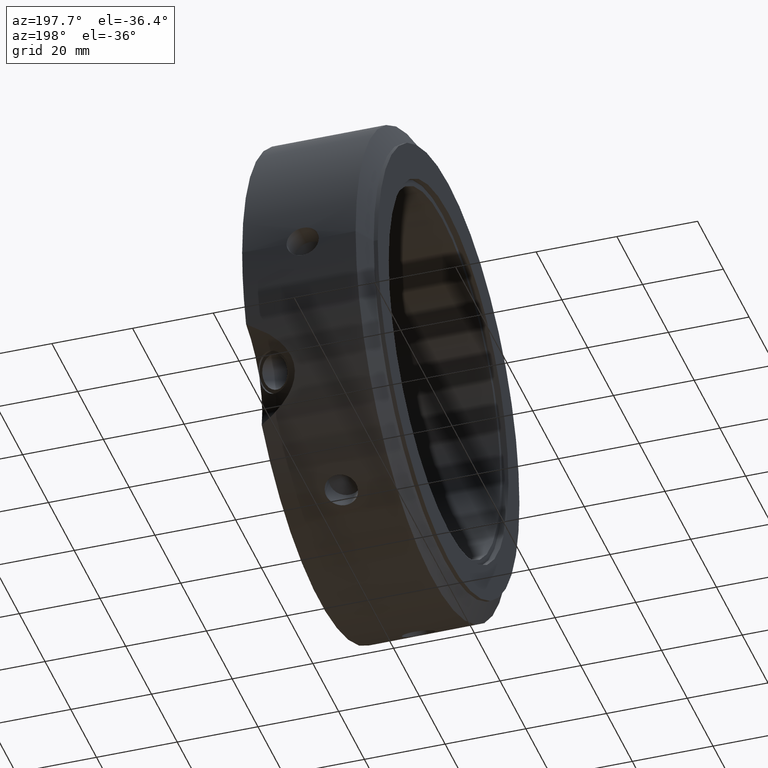
[diagram: clean part render]
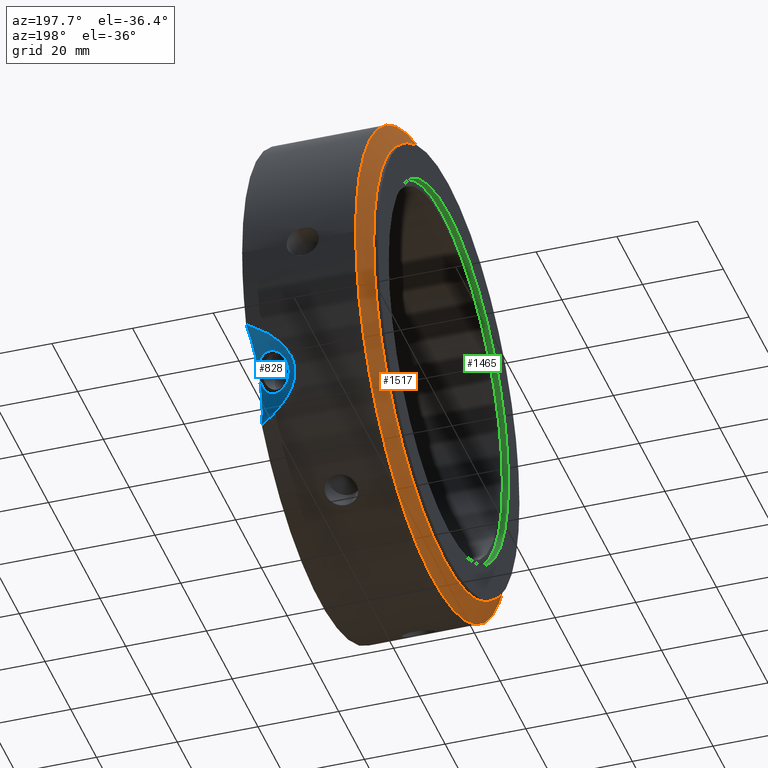
[diagram: same view with three faces highlighted in distinct colors, each labeled with its STEP entity id]
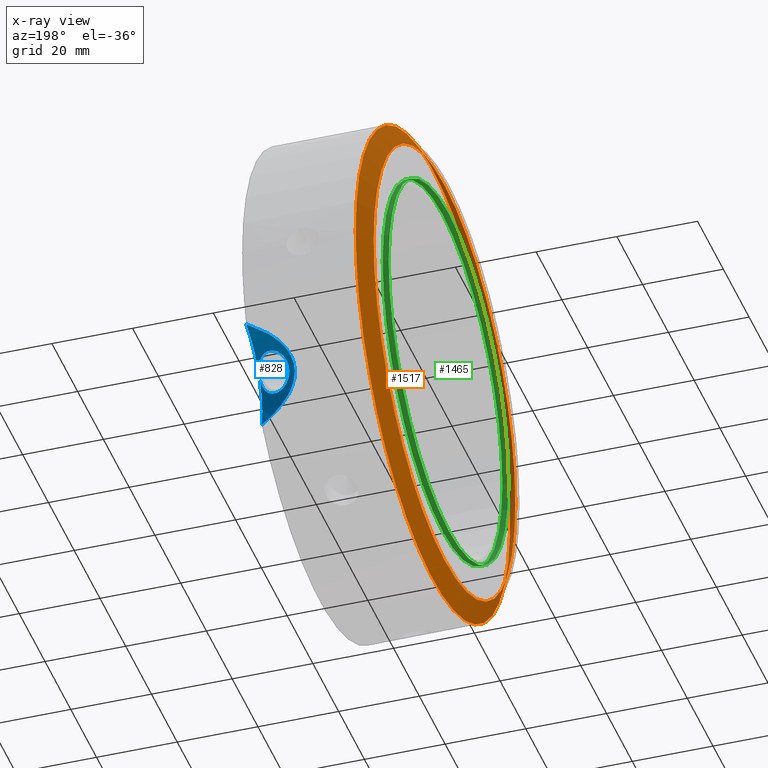
[diagram: x-ray of the same camera — body ghosted, the three highlighted faces saturated]
A machine part, auxiliary view with three faces highlighted in distinct colors.
The next image is the same camera in x-ray (body ghosted, the three faces saturated) — at least one of them is partly hidden behind the body in this view.
Their STEP definitions:

[orange] entity #1517 — the highlighted conical surface has half-angle 60 deg.
#1117=CARTESIAN_POINT('',(3.886751345948105,60.0,0.0));
#1118=VERTEX_POINT('',#1117);
#1119=CARTESIAN_POINT('',(3.886751345948105,0.0,0.0));
#1120=DIRECTION('',(1.0,0.0,0.0));
#1121=DIRECTION('',(0.0,1.0,0.0));
#1122=AXIS2_PLACEMENT_3D('',#1119,#1120,#1121);
#1123=CIRCLE('',#1122,60.0);
#1124=EDGE_CURVE('',#1118,#1118,#1123,.T.);
#1491=CARTESIAN_POINT('',(0.999999999999982,55.0,0.0));
#1492=VERTEX_POINT('',#1491);
#1493=CARTESIAN_POINT('',(0.999999999999982,0.0,0.0));
#1494=DIRECTION('',(1.0,0.0,0.0));
#1495=DIRECTION('',(0.0,1.0,0.0));
#1496=AXIS2_PLACEMENT_3D('',#1493,#1494,#1495);
#1497=CIRCLE('',#1496,55.0);
#1498=EDGE_CURVE('',#1492,#1492,#1497,.T.);
#1506=CARTESIAN_POINT('',(2.443375672974044,0.0,0.0));
#1507=DIRECTION('',(1.0,0.0,0.0));
#1508=DIRECTION('',(0.0,1.0,0.0));
#1509=AXIS2_PLACEMENT_3D('',#1506,#1507,#1508);
#1510=CONICAL_SURFACE('',#1509,57.5,60.000000000000057);
#1511=ORIENTED_EDGE('',*,*,#1124,.F.);
#1512=EDGE_LOOP('',(#1511));
#1513=FACE_OUTER_BOUND('',#1512,.T.);
#1514=ORIENTED_EDGE('',*,*,#1498,.T.);
#1515=EDGE_LOOP('',(#1514));
#1516=FACE_BOUND('',#1515,.T.);
#1517=ADVANCED_FACE('',(#1513,#1516),#1510,.T.);

[blue] entity #828 — the highlighted cylindrical surface (partial cylindrical patch) has radius 20 mm, axis along (-0.866, 0.433, -0.25).
#740=CARTESIAN_POINT('',(35.321507575751177,65.104618016484082,-37.58816873730489));
#741=DIRECTION('',(-0.866025403784438,0.43301270189222,-0.250000000000001));
#742=DIRECTION('',(-0.500000000000001,-0.75,0.43301270189222));
#743=AXIS2_PLACEMENT_3D('',#740,#741,#742);
#744=CYLINDRICAL_SURFACE('',#743,19.999999999999993);
#745=CARTESIAN_POINT('',(31.999999999942066,47.193803546173854,-26.297055110857968));
#746=VERTEX_POINT('',#745);
#747=CARTESIAN_POINT('',(31.999999999999993,56.962044959056151,-18.850077826960437));
#748=VERTEX_POINT('',#747);
#749=CARTESIAN_POINT('',(31.999999999999989,66.765371804359688,-38.547005383792559));
#750=DIRECTION('',(-1.0,0.0,0.0));
#751=DIRECTION('',(0.0,-0.866025403784438,0.5));
#752=AXIS2_PLACEMENT_3D('',#749,#750,#751);
#753=ELLIPSE('',#752,23.094010767585029,19.999999999999993);
#754=EDGE_CURVE('',#746,#748,#753,.T.);
#755=ORIENTED_EDGE('',*,*,#754,.F.);
#756=CARTESIAN_POINT('',(31.999999999942066,46.370819543809311,-27.722505216769715));
#757=VERTEX_POINT('',#756);
#758=CARTESIAN_POINT('',(31.999999999884146,46.370819543809318,-27.722505216769704));
#759=CARTESIAN_POINT('',(31.953530448636155,46.217868117648216,-28.077605914956052));
#760=CARTESIAN_POINT('',(31.873002993575369,46.093503837825807,-28.448888463448831));
#761=CARTESIAN_POINT('',(31.564804545361781,45.848757275717745,-29.45394246006941));
#762=CARTESIAN_POINT('',(31.26906355712288,45.798407705935929,-30.084887341308246));
#763=CARTESIAN_POINT('',(30.570265587038755,45.862028085499986,-31.163634114340432));
#764=CARTESIAN_POINT('',(30.119705892689353,45.980160556186078,-31.684480630125506));
#765=CARTESIAN_POINT('',(29.095466235622535,46.357945885828244,-32.504574760487792));
#766=CARTESIAN_POINT('',(28.520553136830653,46.616274175703879,-32.80289118969425));
#767=CARTESIAN_POINT('',(27.405997607288629,47.173551940474908,-33.124635657198198));
#768=CARTESIAN_POINT('',(26.795620037456445,47.507868984911283,-33.16848317129076));
#769=CARTESIAN_POINT('',(25.645050036497281,48.217488484282114,-32.976202511677215));
#770=CARTESIAN_POINT('',(25.105637679236747,48.594342039400985,-32.741136311135747));
#771=CARTESIAN_POINT('',(24.241412354673464,49.312233307160639,-32.113595498060718));
#772=CARTESIAN_POINT('',(23.858096890120084,49.702111103338595,-31.678677329729183));
#773=CARTESIAN_POINT('',(23.344889599788292,50.463201214254738,-30.668103056520955));
#774=CARTESIAN_POINT('',(23.215956342879242,50.83569797966355,-30.092928201020435));
#775=CARTESIAN_POINT('',(23.215956342879242,51.479089286176588,-28.978541768991732));
#776=CARTESIAN_POINT('',(23.344889599788292,51.790956939953681,-28.368362679569906));
#777=CARTESIAN_POINT('',(23.858096890120084,52.285594877504913,-27.2039521723433));
#778=CARTESIAN_POINT('',(24.241412354673464,52.467306161758458,-26.648849012315921));
#779=CARTESIAN_POINT('',(25.105637679236747,52.651826813913146,-25.713366530743539));
#780=CARTESIAN_POINT('',(25.645050036497274,52.66697333759371,-25.269468678233391));
#781=CARTESIAN_POINT('',(26.795620037456438,52.478683523790068,-24.558779834950677));
#782=CARTESIAN_POINT('',(27.405997607288629,52.27355194047491,-24.291176538596922));
#783=CARTESIAN_POINT('',(27.963275372059645,51.994913058089395,-24.130304304844962));
#784=CARTESIAN_POINT('',(28.520553136830653,51.71627417570388,-23.969432071092982));
#785=CARTESIAN_POINT('',(29.095466235622535,51.328760424707021,-23.894871424147709));
#786=CARTESIAN_POINT('',(30.119705892689353,50.429645409497681,-23.977746796681679));
#787=CARTESIAN_POINT('',(30.570265587038755,49.919512860012141,-24.135864333948227));
#788=CARTESIAN_POINT('',(31.269063557122877,48.953480560533748,-24.620140855563442));
#789=CARTESIAN_POINT('',(31.564804545361781,48.43224104988407,-24.979217302683526));
#790=CARTESIAN_POINT('',(31.873002993575376,47.684212037689626,-25.693701041268298));
#791=CARTESIAN_POINT('',(31.953530448636151,47.424854058624263,-25.987044941164228));
#792=CARTESIAN_POINT('',(31.999999999884142,47.193803546173854,-26.297055110857958));
#793=B_SPLINE_CURVE_WITH_KNOTS('',3,(#758,#759,#760,#761,#762,#763,#764,#765,#766,#767,#768,#769,#770,#771,#772,#773,#774,#775,#776,#777,#778,#779,#780,#781,#782,#783,#784,#785,#786,#787,#788,#789,#790,#791,#792),.UNSPECIFIED.,.F.,.U.,(4,2,2,2,2,2,2,2,2,2,2,2,3,2,2,2,4),(0.85296475731931,0.965145536866458,1.158162928820369,1.351209609322731,1.544256289825093,1.737302970327456,1.930349650829818,2.12336704278373,2.31638443473764,2.509401826691551,2.702419218645463,2.895465899147825,3.088512579650187,3.281559260152549,3.474605940654912,3.667623332608823,3.779804112155968),.UNSPECIFIED.);
#794=EDGE_CURVE('',#757,#746,#793,.T.);
#795=ORIENTED_EDGE('',*,*,#794,.F.);
#796=CARTESIAN_POINT('',(31.999999999999986,44.805668740989518,-39.905539072573795));
#797=VERTEX_POINT('',#796);
#798=CARTESIAN_POINT('',(31.999999999999989,66.765371804359688,-38.547005383792559));
#799=DIRECTION('',(-1.0,0.0,0.0));
#800=DIRECTION('',(0.0,-0.866025403784438,0.5));
#801=AXIS2_PLACEMENT_3D('',#798,#799,#800);
#802=ELLIPSE('',#801,23.094010767585029,19.999999999999993);
#803=EDGE_CURVE('',#797,#757,#802,.T.);
#804=ORIENTED_EDGE('',*,*,#803,.F.);
#805=CARTESIAN_POINT('',(31.999999999999993,56.962044959056151,-18.85007782696043));
#806=CARTESIAN_POINT('',(30.650773587829093,56.732925805223083,-19.542440779592578));
#807=CARTESIAN_POINT('',(29.362231763228735,56.473167870476892,-20.286092066963796));
#808=CARTESIAN_POINT('',(26.527293942483272,55.758735895871361,-22.188534528118282));
#809=CARTESIAN_POINT('',(24.868082345522986,55.217713504239356,-23.532791009155719));
#810=CARTESIAN_POINT('',(23.020359325225861,54.172011677881343,-25.808723375273559));
#811=CARTESIAN_POINT('',(22.510282512127063,53.784145216735304,-26.610860354863242));
#812=CARTESIAN_POINT('',(21.803765959924078,52.929897445816039,-28.27186095717785));
#813=CARTESIAN_POINT('',(21.607695154586757,52.463357222862719,-29.130799754366137));
#814=CARTESIAN_POINT('',(21.607695154586757,51.459691231269886,-30.869200245633905));
#815=CARTESIAN_POINT('',(21.803765959924057,50.949098524085443,-31.702705329192888));
#816=CARTESIAN_POINT('',(22.510282512127048,49.937753692239369,-33.27300590109251));
#817=CARTESIAN_POINT('',(23.020359325225847,49.437015921172801,-34.009976599515781));
#818=CARTESIAN_POINT('',(24.868082345522957,47.988851587998546,-36.053547128984519));
#819=CARTESIAN_POINT('',(26.527293942483258,47.095202522034242,-37.194214504672757));
#820=CARTESIAN_POINT('',(29.362231763228728,45.804855008739018,-38.764151974534265));
#821=CARTESIAN_POINT('',(30.650773587829082,45.290713069691648,-39.360934588544666));
#822=CARTESIAN_POINT('',(31.999999999999996,44.805668740989539,-39.905539072573781));
#823=B_SPLINE_CURVE_WITH_KNOTS('',3,(#805,#806,#807,#808,#809,#810,#811,#812,#813,#814,#815,#816,#817,#818,#819,#820,#821,#822),.UNSPECIFIED.,.F.,.U.,(4,2,2,2,2,2,2,2,4),(2.370458234850144,2.814677080607904,3.4168766755636,3.717976473041449,4.019076270519297,4.320176067997144,4.621275865474992,5.223475460430686,5.667694306188452),.UNSPECIFIED.);
#824=EDGE_CURVE('',#748,#797,#823,.T.);
#825=ORIENTED_EDGE('',*,*,#824,.F.);
#826=EDGE_LOOP('',(#755,#795,#804,#825));
#827=FACE_OUTER_BOUND('',#826,.T.);
#828=ADVANCED_FACE('',(#827),#744,.F.);

[green] entity #1465 — the highlighted cylindrical surface (bore or boss wall) has radius 46.5 mm, axis along (1, 0, 0).
#1423=CARTESIAN_POINT('',(1.499999999999987,46.5,0.0));
#1424=VERTEX_POINT('',#1423);
#1425=CARTESIAN_POINT('',(1.499999999999987,0.0,0.0));
#1426=DIRECTION('',(1.0,0.0,0.0));
#1427=DIRECTION('',(0.0,1.0,0.0));
#1428=AXIS2_PLACEMENT_3D('',#1425,#1426,#1427);
#1429=CIRCLE('',#1428,46.5);
#1430=EDGE_CURVE('',#1424,#1424,#1429,.T.);
#1446=CARTESIAN_POINT('',(0.749999999999987,0.0,0.0));
#1447=DIRECTION('',(1.0,0.0,0.0));
#1448=DIRECTION('',(0.0,1.0,0.0));
#1449=AXIS2_PLACEMENT_3D('',#1446,#1447,#1448);
#1450=CYLINDRICAL_SURFACE('',#1449,46.5);
#1451=CARTESIAN_POINT('',(-1.332268E-014,46.5,0.0));
#1452=VERTEX_POINT('',#1451);
#1453=CARTESIAN_POINT('',(-1.332268E-014,0.0,0.0));
#1454=DIRECTION('',(1.0,0.0,0.0));
#1455=DIRECTION('',(0.0,1.0,0.0));
#1456=AXIS2_PLACEMENT_3D('',#1453,#1454,#1455);
#1457=CIRCLE('',#1456,46.5);
#1458=EDGE_CURVE('',#1452,#1452,#1457,.T.);
#1459=ORIENTED_EDGE('',*,*,#1458,.F.);
#1460=EDGE_LOOP('',(#1459));
#1461=FACE_OUTER_BOUND('',#1460,.T.);
#1462=ORIENTED_EDGE('',*,*,#1430,.T.);
#1463=EDGE_LOOP('',(#1462));
#1464=FACE_BOUND('',#1463,.T.);
#1465=ADVANCED_FACE('',(#1461,#1464),#1450,.F.);